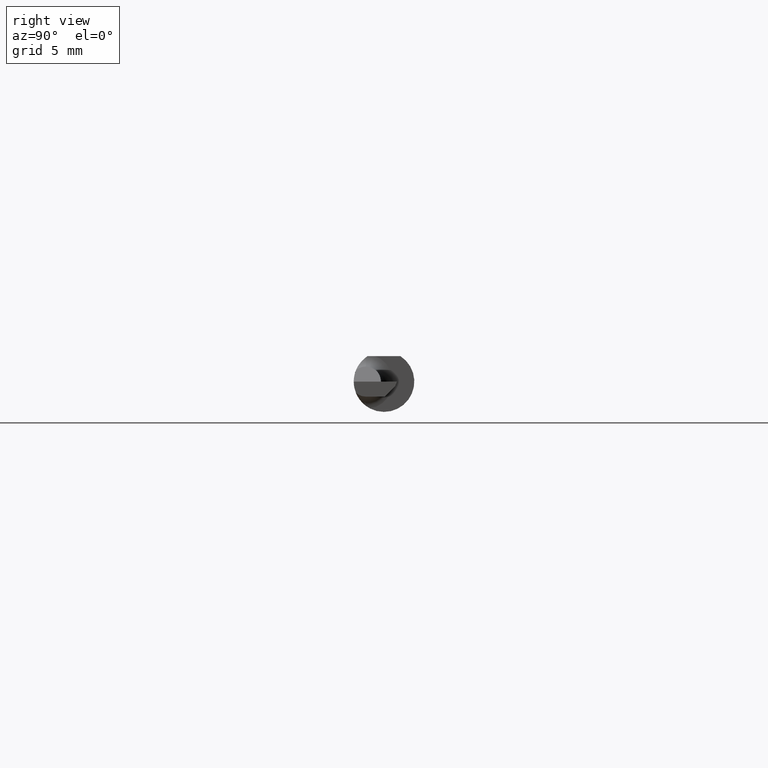
[diagram: clean part render]
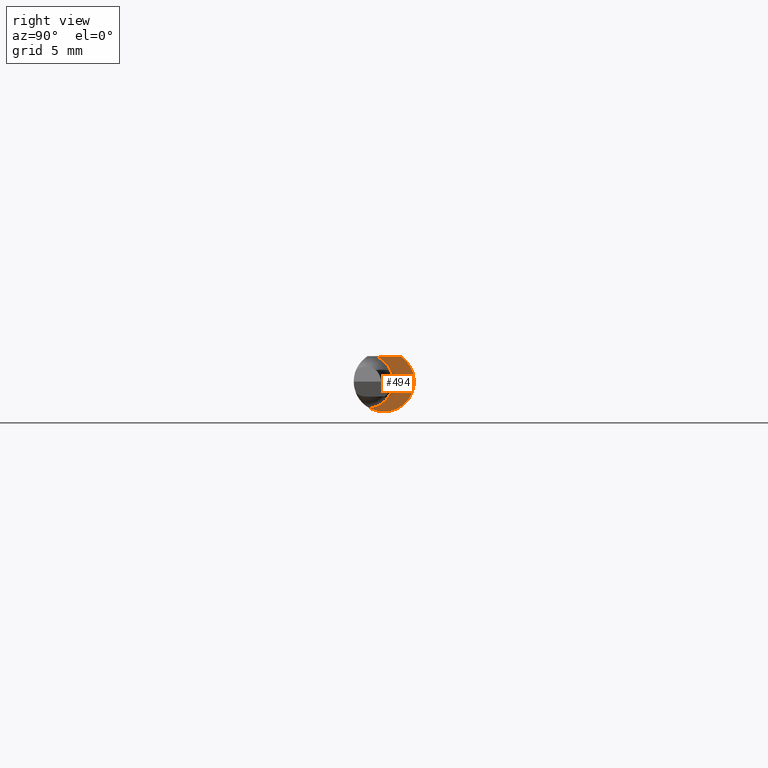
[diagram: same view with one face highlighted and labeled with its STEP entity id]
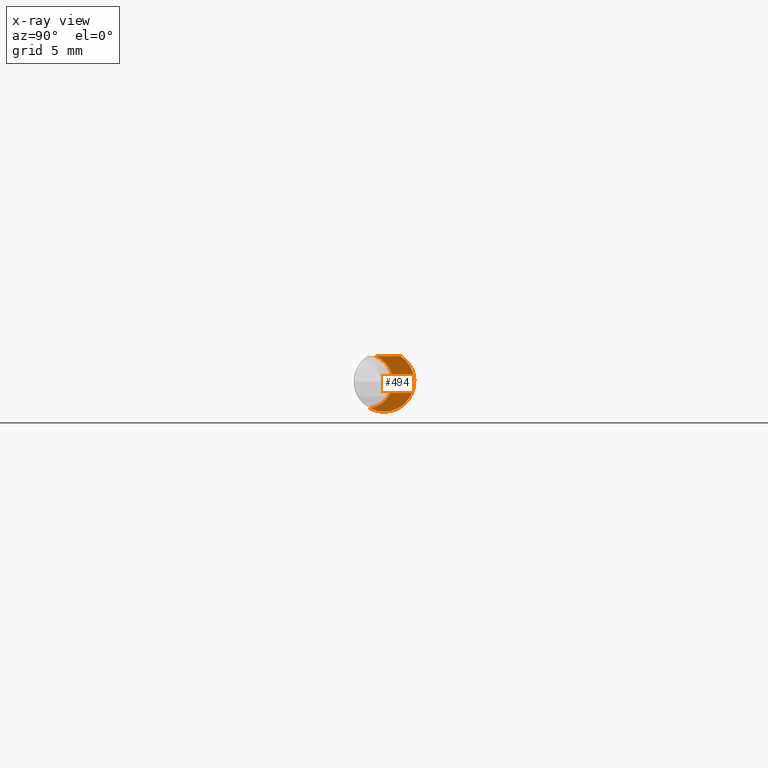
[diagram: x-ray of the same camera — body ghosted, the highlighted face saturated]
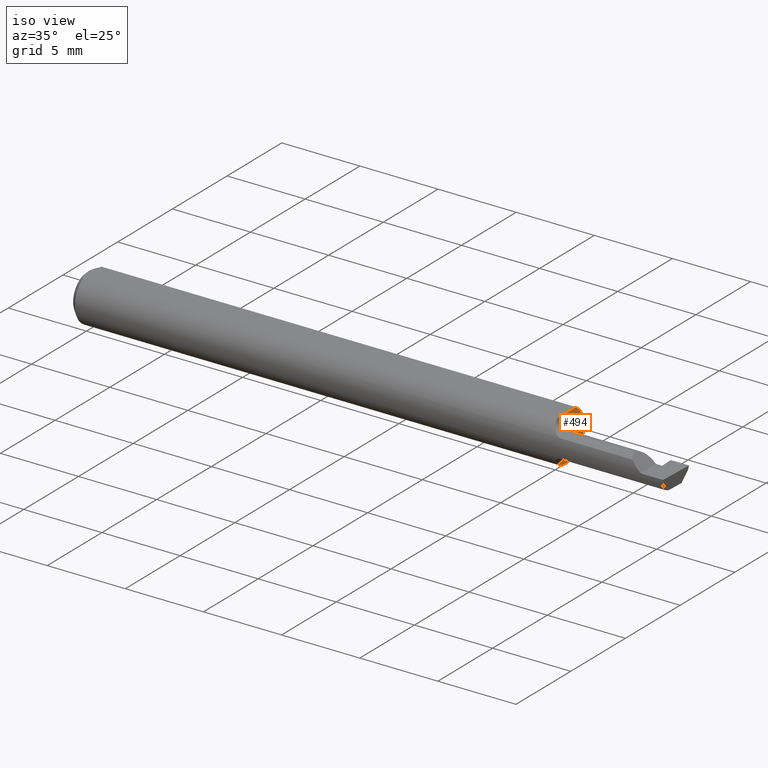
[diagram: same view with one face highlighted and labeled with its STEP entity id]
A machine part, right view. The second image highlights one B-rep face of the part: STEP entity #494.
The next image is the same camera in x-ray: the body ghosted, the highlighted face saturated — about 2% of this face is hidden behind the body in this view.
A second angle (iso view) of the same face is appended — the face is thin or edge-on in the first view.
In plain terms, the highlighted planar face has unit normal (1, 0, 0).
Its self-contained STEP definition (entity closure, byte-faithful):
#28 = EDGE_CURVE ( 'NONE', #543, #558, #253, .T. ) ;
#38 = CARTESIAN_POINT ( 'NONE',  ( 1.210000000000000187, 0.09349999999999999978, 0.000000000000000000 ) ) ;
#41 = CIRCLE ( 'NONE', #338, 0.06250000000000000000 ) ;
#79 = CARTESIAN_POINT ( 'NONE',  ( 1.209999999999999964, -0.03749999999999999167, 0.000000000000000000 ) ) ;
#89 = DIRECTION ( 'NONE',  ( -0.000000000000000000, 1.000000000000000000, 0.000000000000000000 ) ) ;
#105 = EDGE_LOOP ( 'NONE', ( #467, #176, #269 ) ) ;
#139 = CARTESIAN_POINT ( 'NONE',  ( 1.210000000000000187, -0.06250000000000001388, 0.05250000000000000500 ) ) ;
#166 = EDGE_CURVE ( 'NONE', #558, #390, #41, .T. ) ;
#176 = ORIENTED_EDGE ( 'NONE', *, *, #464, .F. ) ;
#193 = DIRECTION ( 'NONE',  ( 0.000000000000000000, 0.000000000000000000, 1.000000000000000000 ) ) ;
#200 = DIRECTION ( 'NONE',  ( -1.000000000000000000, -0.000000000000000000, -0.000000000000000000 ) ) ;
#217 = CARTESIAN_POINT ( 'NONE',  ( 1.209999999999999964, -0.02902000000000000066, -0.05535421935137375266 ) ) ;
#222 = VECTOR ( 'NONE', #89, 39.37007874015748143 ) ;
#253 = CIRCLE ( 'NONE', #379, 0.05599999999999999423 ) ;
#257 = CARTESIAN_POINT ( 'NONE',  ( 1.210000000000000187, 0.000000000000000000, 0.000000000000000000 ) ) ;
#260 = DIRECTION ( 'NONE',  ( 1.000000000000000000, 0.000000000000000000, 0.000000000000000000 ) ) ;
#269 = ORIENTED_EDGE ( 'NONE', *, *, #28, .T. ) ;
#316 = CARTESIAN_POINT ( 'NONE',  ( 1.209999999999999964, -0.01801282473009493609, 0.05250000000000000500 ) ) ;
#338 = AXIS2_PLACEMENT_3D ( 'NONE', #257, #433, #377 ) ;
#349 = CARTESIAN_POINT ( 'NONE',  ( 1.210000000000000187, 0.03391164991562634068, 0.05250000000000000500 ) ) ;
#377 = DIRECTION ( 'NONE',  ( 0.000000000000000000, 0.000000000000000000, -1.000000000000000000 ) ) ;
#379 = AXIS2_PLACEMENT_3D ( 'NONE', #79, #200, #193 ) ;
#385 = FACE_OUTER_BOUND ( 'NONE', #105, .T. ) ;
#390 = VERTEX_POINT ( 'NONE', #349 ) ;
#414 = LINE ( 'NONE', #139, #222 ) ;
#430 = AXIS2_PLACEMENT_3D ( 'NONE', #38, #260, #436 ) ;
#433 = DIRECTION ( 'NONE',  ( 1.000000000000000000, 0.000000000000000000, 0.000000000000000000 ) ) ;
#436 = DIRECTION ( 'NONE',  ( 0.000000000000000000, 0.000000000000000000, -1.000000000000000000 ) ) ;
#464 = EDGE_CURVE ( 'NONE', #543, #390, #414, .T. ) ;
#467 = ORIENTED_EDGE ( 'NONE', *, *, #166, .T. ) ;
#494 = ADVANCED_FACE ( 'NONE', ( #385 ), #694, .T. ) ;
#543 = VERTEX_POINT ( 'NONE', #316 ) ;
#558 = VERTEX_POINT ( 'NONE', #217 ) ;
#694 = PLANE ( 'NONE',  #430 ) ;